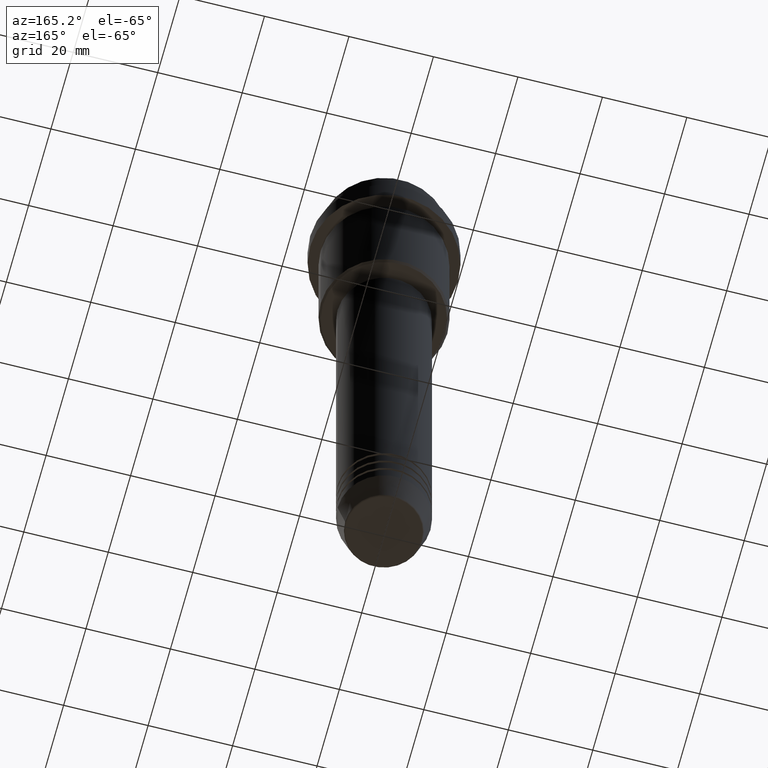
[diagram: clean part render]
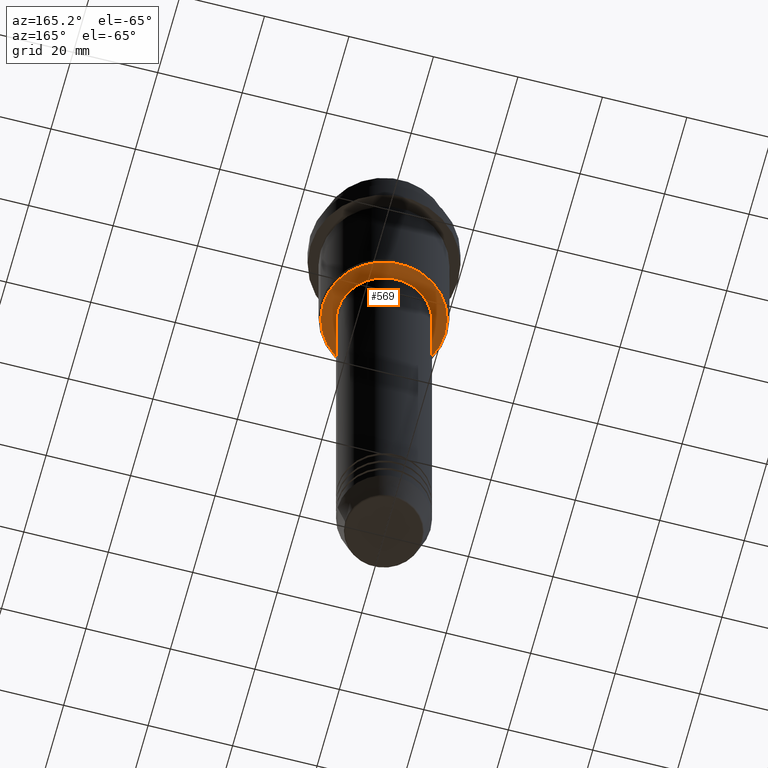
[diagram: same view with one face highlighted and labeled with its STEP entity id]
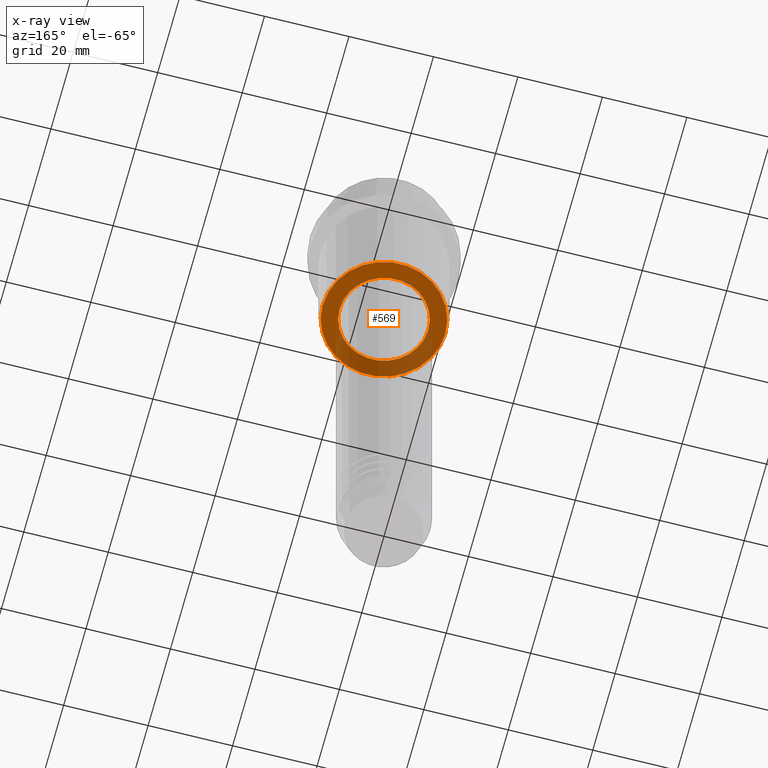
[diagram: x-ray of the same camera — body ghosted, the highlighted face saturated]
A machine part, auxiliary view. The second image highlights one B-rep face of the part: STEP entity #569.
The next image is the same camera in x-ray: the body ghosted, the highlighted face saturated — about 34% of this face is hidden behind the body in this view.
In plain terms, the highlighted planar face has unit normal (0, 0, -1).
Its self-contained STEP definition (entity closure, byte-faithful):
#21 = AXIS2_PLACEMENT_3D ( 'NONE', #1089, #1183, #963 ) ;
#43 = AXIS2_PLACEMENT_3D ( 'NONE', #635, #1080, #869 ) ;
#84 = ORIENTED_EDGE ( 'NONE', *, *, #396, .T. ) ;
#148 = CIRCLE ( 'NONE', #21, 14.49999999999995559 ) ;
#163 = DIRECTION ( 'NONE',  ( 0.000000000000000000, 0.000000000000000000, -1.000000000000000000 ) ) ;
#168 = DIRECTION ( 'NONE',  ( -0.000000000000000000, -0.000000000000000000, 1.000000000000000000 ) ) ;
#214 = CIRCLE ( 'NONE', #1022, 10.49999999999999289 ) ;
#240 = CARTESIAN_POINT ( 'NONE',  ( -10.49999999999999289, 1.285879139104720042E-15, -44.99999999999998579 ) ) ;
#242 = CIRCLE ( 'NONE', #796, 14.49999999999995559 ) ;
#299 = DIRECTION ( 'NONE',  ( -0.000000000000000000, -0.000000000000000000, 1.000000000000000000 ) ) ;
#323 = CARTESIAN_POINT ( 'NONE',  ( 0.000000000000000000, 0.000000000000000000, -44.99999999999998579 ) ) ;
#334 = VERTEX_POINT ( 'NONE', #1316 ) ;
#362 = EDGE_CURVE ( 'NONE', #1335, #334, #214, .T. ) ;
#376 = VERTEX_POINT ( 'NONE', #636 ) ;
#386 = EDGE_LOOP ( 'NONE', ( #744, #854 ) ) ;
#394 = DIRECTION ( 'NONE',  ( -1.000000000000000000, 0.000000000000000000, 0.000000000000000000 ) ) ;
#396 = EDGE_CURVE ( 'NONE', #1109, #376, #148, .T. ) ;
#415 = DIRECTION ( 'NONE',  ( 1.000000000000000000, 0.000000000000000000, 0.000000000000000000 ) ) ;
#418 = DIRECTION ( 'NONE',  ( 1.000000000000000000, 0.000000000000000000, 0.000000000000000000 ) ) ;
#439 = ORIENTED_EDGE ( 'NONE', *, *, #521, .T. ) ;
#521 = EDGE_CURVE ( 'NONE', #376, #1109, #242, .T. ) ;
#522 = CARTESIAN_POINT ( 'NONE',  ( 0.000000000000000000, 0.000000000000000000, -44.99999999999998579 ) ) ;
#569 = ADVANCED_FACE ( 'NONE', ( #746, #980 ), #1328, .T. ) ;
#635 = CARTESIAN_POINT ( 'NONE',  ( 0.000000000000000000, 15.00000000000000000, -44.99999999999998579 ) ) ;
#636 = CARTESIAN_POINT ( 'NONE',  ( -14.49999999999995559, 1.806354028742343041E-15, -44.99999999999998579 ) ) ;
#732 = CARTESIAN_POINT ( 'NONE',  ( 0.000000000000000000, 0.000000000000000000, -44.99999999999998579 ) ) ;
#737 = CARTESIAN_POINT ( 'NONE',  ( 14.49999999999995559, 0.000000000000000000, -44.99999999999998579 ) ) ;
#744 = ORIENTED_EDGE ( 'NONE', *, *, #1028, .T. ) ;
#746 = FACE_OUTER_BOUND ( 'NONE', #1397, .T. ) ;
#796 = AXIS2_PLACEMENT_3D ( 'NONE', #732, #163, #394 ) ;
#854 = ORIENTED_EDGE ( 'NONE', *, *, #362, .T. ) ;
#869 = DIRECTION ( 'NONE',  ( -1.000000000000000000, 0.000000000000000000, -0.000000000000000000 ) ) ;
#872 = AXIS2_PLACEMENT_3D ( 'NONE', #522, #168, #418 ) ;
#963 = DIRECTION ( 'NONE',  ( -1.000000000000000000, 0.000000000000000000, 0.000000000000000000 ) ) ;
#980 = FACE_BOUND ( 'NONE', #386, .T. ) ;
#1022 = AXIS2_PLACEMENT_3D ( 'NONE', #323, #299, #415 ) ;
#1028 = EDGE_CURVE ( 'NONE', #334, #1335, #1257, .T. ) ;
#1080 = DIRECTION ( 'NONE',  ( 0.000000000000000000, 0.000000000000000000, -1.000000000000000000 ) ) ;
#1089 = CARTESIAN_POINT ( 'NONE',  ( 0.000000000000000000, 0.000000000000000000, -44.99999999999998579 ) ) ;
#1109 = VERTEX_POINT ( 'NONE', #737 ) ;
#1183 = DIRECTION ( 'NONE',  ( 0.000000000000000000, 0.000000000000000000, -1.000000000000000000 ) ) ;
#1257 = CIRCLE ( 'NONE', #872, 10.49999999999999289 ) ;
#1316 = CARTESIAN_POINT ( 'NONE',  ( 10.49999999999999289, 0.000000000000000000, -44.99999999999998579 ) ) ;
#1328 = PLANE ( 'NONE',  #43 ) ;
#1335 = VERTEX_POINT ( 'NONE', #240 ) ;
#1397 = EDGE_LOOP ( 'NONE', ( #84, #439 ) ) ;